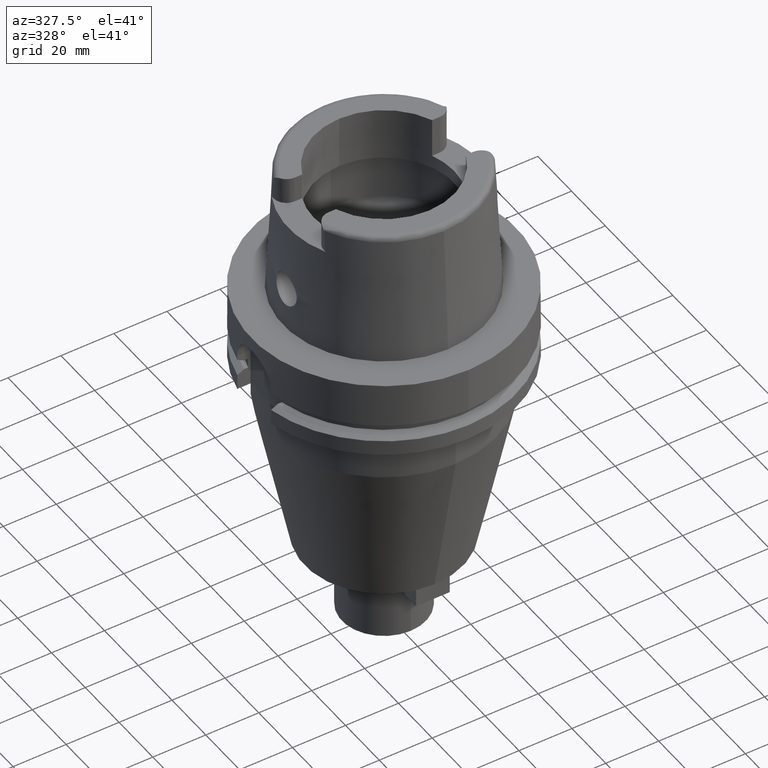
[diagram: clean part render]
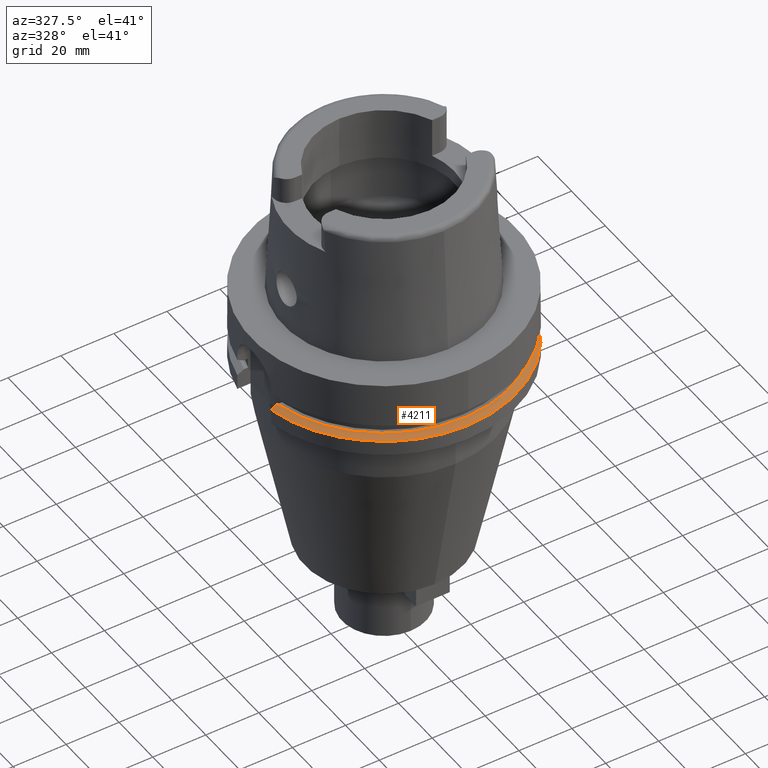
[diagram: same view with one face highlighted and labeled with its STEP entity id]
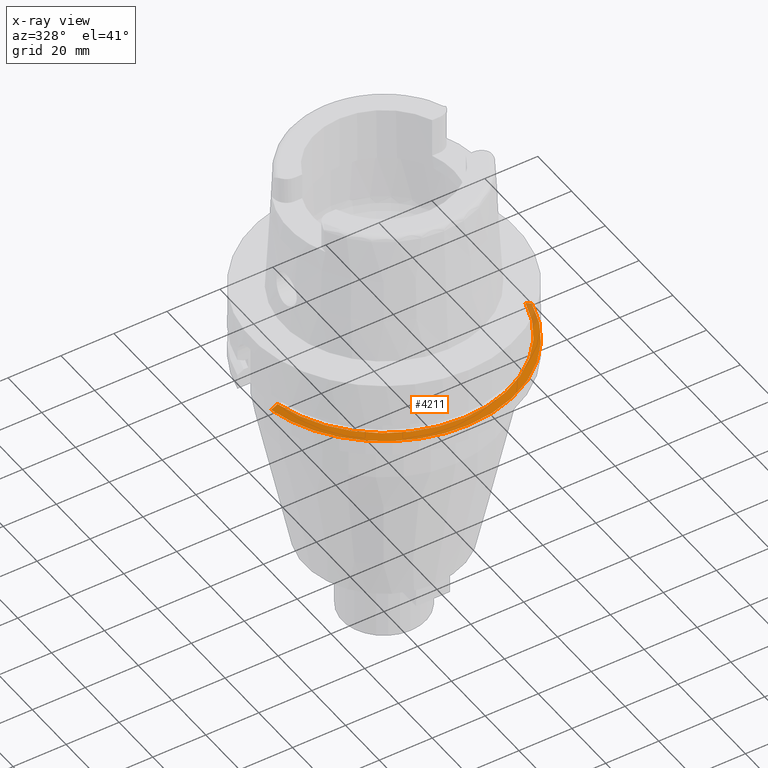
[diagram: x-ray of the same camera — body ghosted, the highlighted face saturated]
A machine part, auxiliary view. The second image highlights one B-rep face of the part: STEP entity #4211.
The next image is the same camera in x-ray: the body ghosted, the highlighted face saturated — about 5% of this face is hidden behind the body in this view.
In plain terms, the highlighted conical surface has half-angle 60 deg.
Its self-contained STEP definition (entity closure, byte-faithful):
#1950=CARTESIAN_POINT('',(0.E0,0.E0,-2.1875E1));
#1951=DIRECTION('',(0.E0,0.E0,-1.E0));
#1952=DIRECTION('',(9.729578356533E-1,-2.309827916554E-1,0.E0));
#1953=AXIS2_PLACEMENT_3D('',#1950,#1951,#1952);
#1958=CARTESIAN_POINT('',(0.E0,0.E0,-2.1875E1));
#1959=DIRECTION('',(0.E0,0.E0,-1.E0));
#1960=DIRECTION('',(0.E0,-1.E0,0.E0));
#1961=AXIS2_PLACEMENT_3D('',#1958,#1959,#1960);
#1966=CARTESIAN_POINT('',(-4.898979485566E1,-1.E1,-2.324759526419E1));
#1967=CARTESIAN_POINT('',(-4.872002593966E1,-1.E1,-2.309499092031E1));
#1968=CARTESIAN_POINT('',(-4.818041161677E1,-1.E1,-2.278984413389E1));
#1969=CARTESIAN_POINT('',(-4.737076227628E1,-1.E1,-2.233230648793E1));
#1970=CARTESIAN_POINT('',(-4.683084020607E1,-1.E1,-2.202741066863E1));
#1971=CARTESIAN_POINT('',(-4.656083740330E1,-1.E1,-2.1875E1));
#1976=CARTESIAN_POINT('',(4.633477721644E1,-1.1E1,-2.1875E1));
#1977=CARTESIAN_POINT('',(4.660605711265E1,-1.1E1,-2.202738808211E1));
#1978=CARTESIAN_POINT('',(4.714851446811E1,-1.1E1,-2.233225649733E1));
#1979=CARTESIAN_POINT('',(4.796191616323E1,-1.1E1,-2.278979543230E1));
#1980=CARTESIAN_POINT('',(4.850399904748E1,-1.1E1,-2.309496975038E1));
#1981=CARTESIAN_POINT('',(4.877499359303E1,-1.1E1,-2.324759526419E1));
#1986=CARTESIAN_POINT('',(0.E0,0.E0,-2.324759526419E1));
#1987=DIRECTION('',(0.E0,0.E0,-1.E0));
#1988=DIRECTION('',(9.754998718606E-1,-2.2E-1,0.E0));
#1989=AXIS2_PLACEMENT_3D('',#1986,#1987,#1988);
#1994=CARTESIAN_POINT('',(0.E0,0.E0,-2.324759526419E1));
#1995=DIRECTION('',(0.E0,0.E0,-1.E0));
#1996=DIRECTION('',(0.E0,-1.E0,0.E0));
#1997=AXIS2_PLACEMENT_3D('',#1994,#1995,#1996);
#2640=CARTESIAN_POINT('',(-4.898979485566E1,-1.E1,-2.324759526419E1));
#2641=VERTEX_POINT('',#2640);
#2642=CARTESIAN_POINT('',(4.877499359303E1,-1.1E1,-2.324759526419E1));
#2643=CARTESIAN_POINT('',(-2.664535259100E-14,-5.E1,-2.324759526419E1));
#2644=VERTEX_POINT('',#2642);
#2645=VERTEX_POINT('',#2643);
#2665=CARTESIAN_POINT('',(-4.656083740330E1,-1.E1,-2.1875E1));
#2666=VERTEX_POINT('',#2665);
#2681=CARTESIAN_POINT('',(3.839522673045E-14,-4.762259526419E1,-2.1875E1));
#2682=VERTEX_POINT('',#2681);
#2683=CARTESIAN_POINT('',(4.633477721644E1,-1.1E1,-2.1875E1));
#2684=VERTEX_POINT('',#2683);
#4198=CARTESIAN_POINT('',(0.E0,0.E0,-2.256129763210E1));
#4199=DIRECTION('',(0.E0,0.E0,-1.E0));
#4200=DIRECTION('',(0.E0,-1.E0,0.E0));
#4201=AXIS2_PLACEMENT_3D('',#4198,#4199,#4200);
#4202=CONICAL_SURFACE('',#4201,4.881129763209E1,6.E1);
#4203=ORIENTED_EDGE('',*,*,#3868,.T.);
#4204=ORIENTED_EDGE('',*,*,#4193,.F.);
#4205=ORIENTED_EDGE('',*,*,#4191,.F.);
#4206=ORIENTED_EDGE('',*,*,#3813,.T.);
#4207=ORIENTED_EDGE('',*,*,#3840,.T.);
#4208=ORIENTED_EDGE('',*,*,#3838,.T.);
#4209=EDGE_LOOP('',(#4203,#4204,#4205,#4206,#4207,#4208));
#4210=FACE_OUTER_BOUND('',#4209,.F.);
#1954=CIRCLE('',#1953,4.762259526419E1);
#1962=CIRCLE('',#1961,4.762259526419E1);
#1972=B_SPLINE_CURVE_WITH_KNOTS('',3,(#1966,#1967,#1968,#1969,#1970,#1971),
.UNSPECIFIED.,.F.,.F.,(4,1,1,4),(0.E0,3.333333333333E-1,6.666666666667E-1,1.E0),
.UNSPECIFIED.);
#1982=B_SPLINE_CURVE_WITH_KNOTS('',3,(#1976,#1977,#1978,#1979,#1980,#1981),
.UNSPECIFIED.,.F.,.F.,(4,1,1,4),(0.E0,3.333333333333E-1,6.666666666667E-1,1.E0),
.UNSPECIFIED.);
#1990=CIRCLE('',#1989,5.E1);
#1998=CIRCLE('',#1997,5.E1);
#3813=EDGE_CURVE('',#2684,#2644,#1982,.T.);
#3838=EDGE_CURVE('',#2645,#2641,#1998,.T.);
#3840=EDGE_CURVE('',#2644,#2645,#1990,.T.);
#3868=EDGE_CURVE('',#2641,#2666,#1972,.T.);
#4191=EDGE_CURVE('',#2684,#2682,#1954,.T.);
#4193=EDGE_CURVE('',#2682,#2666,#1962,.T.);
#4211=ADVANCED_FACE('',(#4210),#4202,.T.);